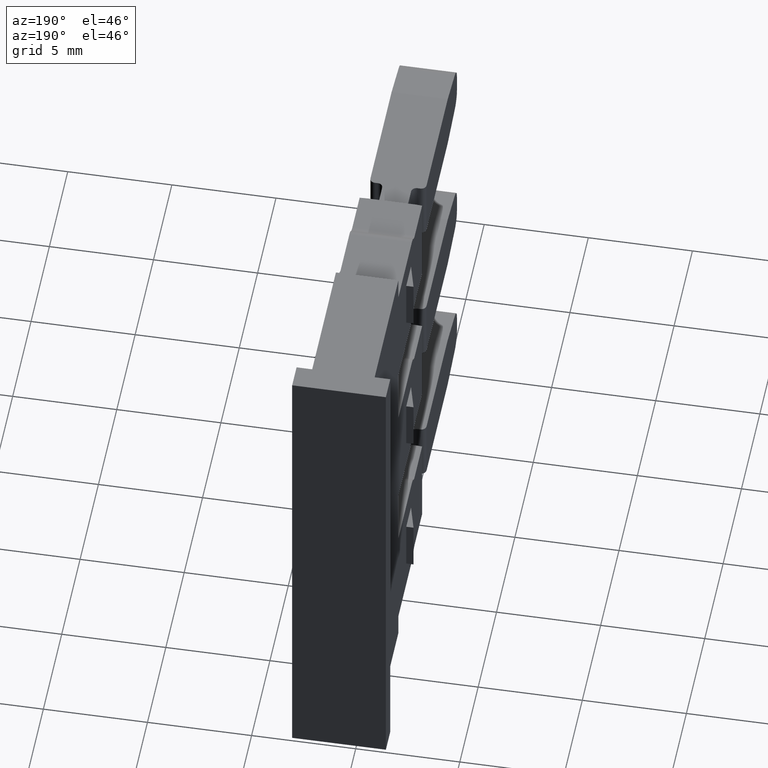
[diagram: clean part render]
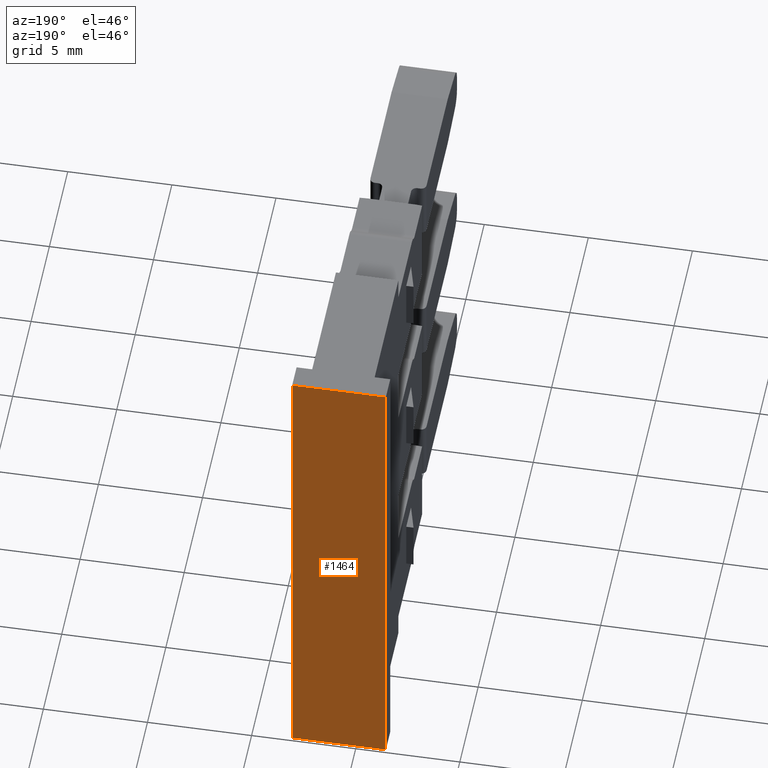
[diagram: same view with one face highlighted and labeled with its STEP entity id]
A machine part, auxiliary view. The second image highlights one B-rep face of the part: STEP entity #1464.
In plain terms, the highlighted planar face has unit normal (0, -1, -0).
Its self-contained STEP definition (entity closure, byte-faithful):
#256 = DIRECTION ( 'NONE',  ( 2.643655590711540000E-014, -1.000000000000000000, -2.968510761029624900E-015 ) ) ;
#260 = CARTESIAN_POINT ( 'NONE',  ( 112.2452529172779900, 260.3101602476014600, 228.6398226793851100 ) ) ;
#272 = DIRECTION ( 'NONE',  ( 1.000000000000000000, 2.643655590711540000E-014, 0.0000000000000000000 ) ) ;
#288 = FACE_OUTER_BOUND ( 'NONE', #1837, .T. ) ;
#289 = PLANE ( 'NONE',  #3079 ) ;
#747 = CARTESIAN_POINT ( 'NONE',  ( 108.4952529172783100, 260.3101602476015200, 149.0398226793859900 ) ) ;
#768 = CARTESIAN_POINT ( 'NONE',  ( 108.4952529172782200, 260.3101602476015700, 173.0398226793859900 ) ) ;
#793 = CARTESIAN_POINT ( 'NONE',  ( 112.9952529172783200, 260.3101602476016300, 149.0398226793859900 ) ) ;
#826 = CARTESIAN_POINT ( 'NONE',  ( 112.9952529172782500, 260.3101602476015700, 173.0398226793859900 ) ) ;
#1098 = EDGE_CURVE ( 'NONE', #1627, #1650, #3893, .T. ) ;
#1165 = EDGE_CURVE ( 'NONE', #1590, #1584, #4097, .T. ) ;
#1223 = EDGE_CURVE ( 'NONE', #1627, #1584, #3257, .T. ) ;
#1233 = EDGE_CURVE ( 'NONE', #1590, #1650, #3340, .T. ) ;
#1464 = ADVANCED_FACE ( 'NONE', ( #288 ), #289, .F. ) ;
#1584 = VERTEX_POINT ( 'NONE', #747 ) ;
#1590 = VERTEX_POINT ( 'NONE', #768 ) ;
#1627 = VERTEX_POINT ( 'NONE', #793 ) ;
#1650 = VERTEX_POINT ( 'NONE', #826 ) ;
#1837 = EDGE_LOOP ( 'NONE', ( #2136, #2140, #2097, #2086 ) ) ;
#2086 = ORIENTED_EDGE ( 'NONE', *, *, #1223, .T. ) ;
#2097 = ORIENTED_EDGE ( 'NONE', *, *, #1098, .F. ) ;
#2136 = ORIENTED_EDGE ( 'NONE', *, *, #1165, .F. ) ;
#2140 = ORIENTED_EDGE ( 'NONE', *, *, #1233, .T. ) ;
#2667 = VECTOR ( 'NONE', #3867, 1000.000000000000000 ) ;
#2722 = VECTOR ( 'NONE', #4107, 1000.000000000000000 ) ;
#2815 = VECTOR ( 'NONE', #3332, 1000.000000000000000 ) ;
#2820 = VECTOR ( 'NONE', #3328, 1000.000000000000000 ) ;
#3079 = AXIS2_PLACEMENT_3D ( 'NONE', #260, #256, #272 ) ;
#3257 = LINE ( 'NONE', #3301, #2820 ) ;
#3301 = CARTESIAN_POINT ( 'NONE',  ( 112.2452529172788300, 260.3101602476015700, 149.0398226793859900 ) ) ;
#3309 = CARTESIAN_POINT ( 'NONE',  ( 112.2452529172785900, 260.3101602476015200, 173.0398226793859900 ) ) ;
#3328 = DIRECTION ( 'NONE',  ( -1.000000000000000000, -0.0000000000000000000, -7.193572994224081300E-015 ) ) ;
#3332 = DIRECTION ( 'NONE',  ( 1.000000000000000000, -0.0000000000000000000, 7.193572994224081300E-015 ) ) ;
#3340 = LINE ( 'NONE', #3309, #2815 ) ;
#3862 = CARTESIAN_POINT ( 'NONE',  ( 112.9952529172783200, 260.3101602476014600, 228.6398226793851100 ) ) ;
#3867 = DIRECTION ( 'NONE',  ( 7.847720069483336500E-029, -2.968510761029624900E-015, 1.000000000000000000 ) ) ;
#3893 = LINE ( 'NONE', #3862, #2667 ) ;
#4080 = CARTESIAN_POINT ( 'NONE',  ( 108.4952529172782200, 260.3101602476013500, 228.6398226793851100 ) ) ;
#4097 = LINE ( 'NONE', #4080, #2722 ) ;
#4107 = DIRECTION ( 'NONE',  ( -7.847720069483336500E-029, 2.968510761029624900E-015, -1.000000000000000000 ) ) ;